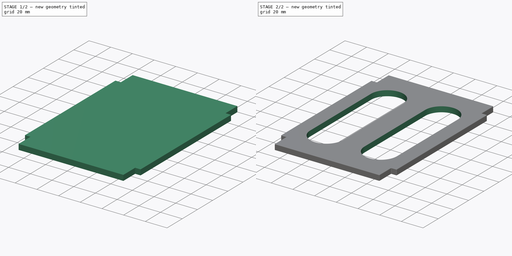
[diagram: build sequence overview — one tinted view per stage of 2, left to right]
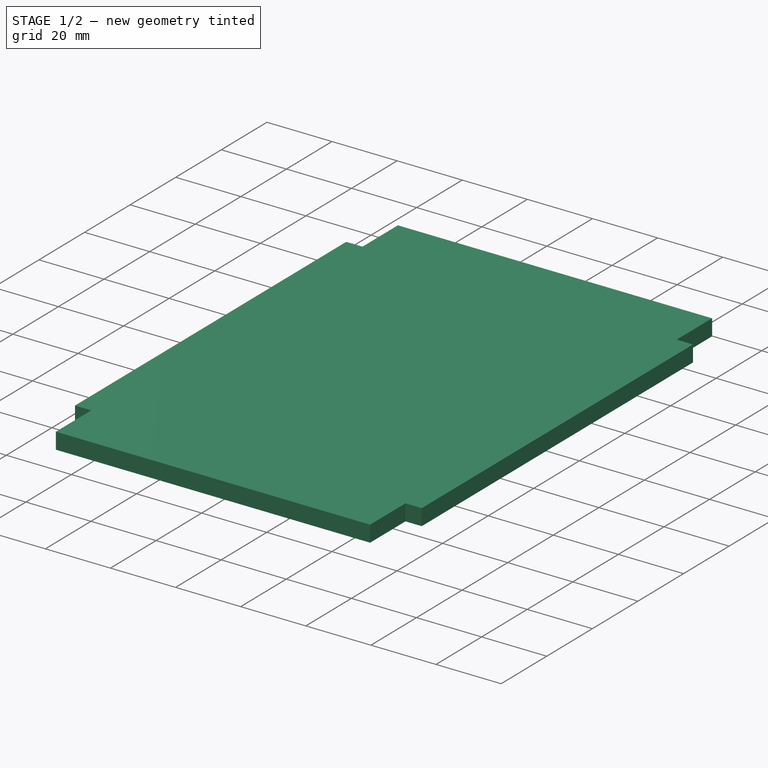
[diagram: stage 1 of 2 — iso view after this stage's code; geometry added in this stage tinted green]
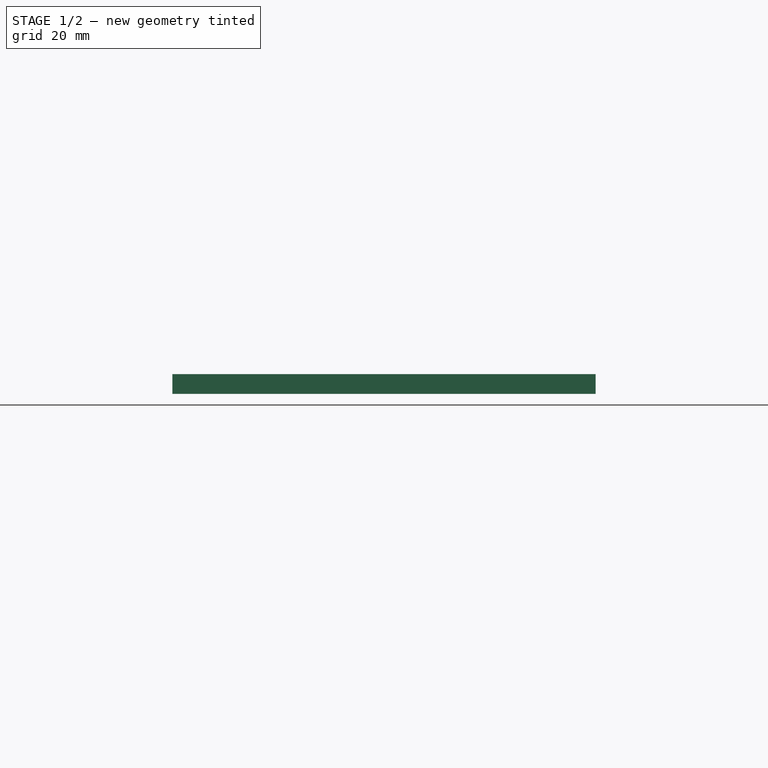
[diagram: stage 1 of 2 — front view after this stage's code; geometry added in this stage tinted green]
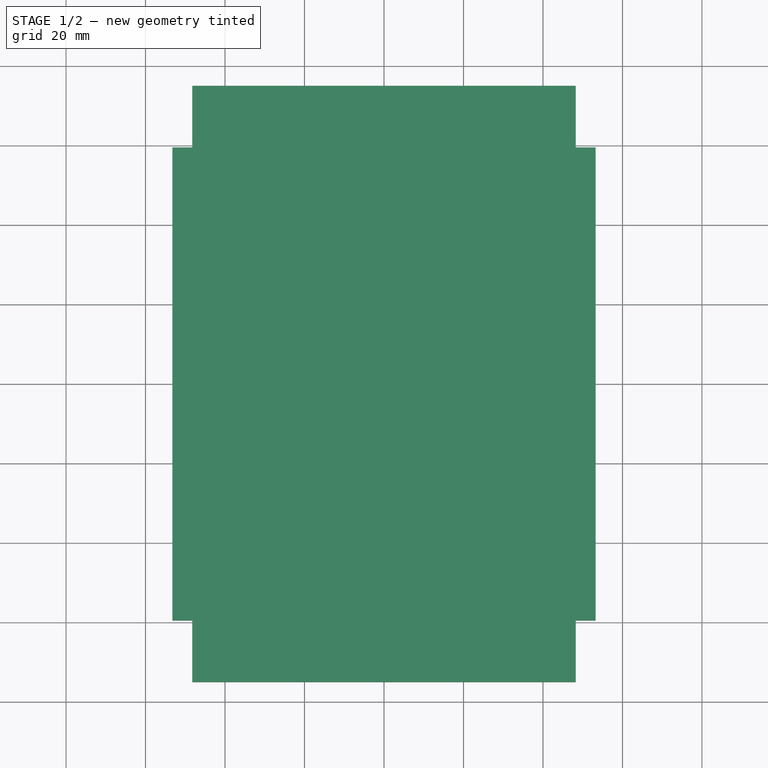
[diagram: stage 1 of 2 — top view after this stage's code; geometry added in this stage tinted green]
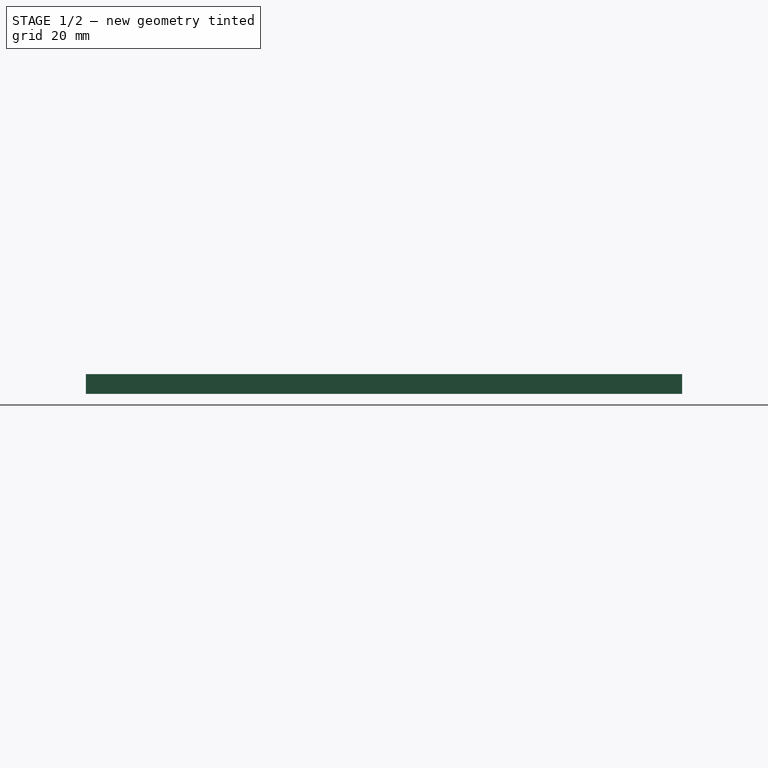
[diagram: stage 1 of 2 — right view after this stage's code; geometry added in this stage tinted green]
FCSTD DOCUMENT  (FreeCAD 0.18R4 (GitTag))
Label: Circuitboard_Mount (Template)
License: CreativeCommons Attribution-NonCommercial
LicenseURL: http://creativecommons.org/licenses/by-nc/4.0/
objects: Sketcher::SketchObject×3, PartDesign::Pocket×2, PartDesign::Pad×1, PartDesign::Fillet×1, PartDesign::Body×1
note: 11 computed .brp shape members not serialized (recipe doc carries the construction recipe); baked Part::Feature solids carry a one-line shape summary decoded from their .brp

FEATURE [Sketcher::SketchObject] Sketch
  MapMode = 5
  Support = -> [XY_Plane]
  sketch-geometry (4):
    g0: LineSegment StartX=-53.25 StartY=75 StartZ=0 EndX=53.25 EndY=75 EndZ=0
    g1: LineSegment StartX=53.25 StartY=75 StartZ=0 EndX=53.25 EndY=-75 EndZ=0
    g2: LineSegment StartX=53.25 StartY=-75 StartZ=0 EndX=-53.25 EndY=-75 EndZ=0
    g3: LineSegment StartX=-53.25 StartY=-75 StartZ=0 EndX=-53.25 EndY=75 EndZ=0
  constraints (10):
    c: Coincident(g0,g1)
    c: Coincident(g1,g2)
    c: Coincident(g2,g3)
    c: Coincident(g3,g0)
    c: Horizontal(g2)
    c: Vertical(g3)
    c: Symmetric(g0,g0,g-2)
    c: Symmetric(g1,g0,g-1)
    c: DistanceX(g0,g0) = 106.5
    c: DistanceY(g1,g1) = 150
FEATURE [PartDesign::Pad] Pad  label="Baseplate"
  Length = 5
  Length2 = 100
  Profile = -> Sketch
  Type = 0
FEATURE [Sketcher::SketchObject] Sketch001
  MapMode = 5
  Placement = pos=(0,0,5) rot=(0,0,1;0rad)
  Support = -> [Pad]
  sketch-geometry (16):
    g0: LineSegment StartX=-53.25 StartY=75 StartZ=0 EndX=-48.25 EndY=75 EndZ=0
    g1: LineSegment StartX=-48.25 StartY=75 StartZ=0 EndX=-48.25 EndY=59.5 EndZ=0
    g2: LineSegment StartX=-48.25 StartY=59.5 StartZ=0 EndX=-53.25 EndY=59.5 EndZ=0
    g3: LineSegment StartX=-53.25 StartY=59.5 StartZ=0 EndX=-53.25 EndY=75 EndZ=0
    g4: LineSegment StartX=53.25 StartY=75 StartZ=0 EndX=48.25 EndY=75 EndZ=0
    g5: LineSegment StartX=48.25 StartY=75 StartZ=0 EndX=48.25 EndY=59.5 EndZ=0
    g6: LineSegment StartX=48.25 StartY=59.5 StartZ=0 EndX=53.25 EndY=59.5 EndZ=0
    g7: LineSegment StartX=53.25 StartY=59.5 StartZ=0 EndX=53.25 EndY=75 EndZ=0
    g8: LineSegment StartX=53.25 StartY=-75 StartZ=0 EndX=48.25 EndY=-75 EndZ=0
    g9: LineSegment StartX=48.25 StartY=-75 StartZ=0 EndX=48.25 EndY=-59.5 EndZ=0
    g10: LineSegment StartX=48.25 StartY=-59.5 StartZ=0 EndX=53.25 EndY=-59.5 EndZ=0
    g11: LineSegment StartX=53.25 StartY=-59.5 StartZ=0 EndX=53.25 EndY=-75 EndZ=0
    g12: LineSegment StartX=-53.25 StartY=-75 StartZ=0 EndX=-48.25 EndY=-75 EndZ=0
    g13: LineSegment StartX=-48.25 StartY=-75 StartZ=0 EndX=-48.25 EndY=-59.5 EndZ=0
    g14: LineSegment StartX=-48.25 StartY=-59.5 StartZ=0 EndX=-53.25 EndY=-59.5 EndZ=0
    g15: LineSegment StartX=-53.25 StartY=-59.5 StartZ=0 EndX=-53.25 EndY=-75 EndZ=0
  constraints (45):
    c: Coincident(g0,g1)
    c: Coincident(g1,g2)
    c: Coincident(g2,g3)
    c: Coincident(g3,g0)
    c: Horizontal(g0)
    c: Horizontal(g2)
    c: Vertical(g1)
    c: Vertical(g3)
    c: Coincident(g4,g5)
    c: Coincident(g5,g6)
    c: Coincident(g6,g7)
    c: Coincident(g7,g4)
    c: Horizontal(g4)
    c: Horizontal(g6)
    c: Vertical(g5)
    c: Vertical(g7)
    c: Coincident(g8,g9)
    c: Coincident(g9,g10)
    c: Coincident(g10,g11)
    c: Coincident(g11,g8)
    c: Horizontal(g8)
    c: Horizontal(g10)
    c: Vertical(g9)
    c: Vertical(g11)
    c: Coincident(g12,g13)
    c: Coincident(g13,g14)
    c: Coincident(g14,g15)
    c: Coincident(g15,g12)
    c: Horizontal(g12)
    c: Horizontal(g14)
    c: Vertical(g13)
    c: Vertical(g15)
    c: Equal(g2,g14)
    c: Equal(g14,g10)
    c: Equal(g10,g6)
    c: Symmetric(g0,g4,g-2)
    c: Symmetric(g10,g6,g-1)
    c: Symmetric(g2,g14,g-1)
    c: Equal(g1,g13)
    c: Equal(g13,g9)
    c: Equal(g9,g5)
    c: DistanceX(g0,g0) = 5
    c: DistanceY(g1,g1) = 15.5
    c: DistanceY(g8,g4) = 150
    c: DistanceX(g0,g4) = 106.5
FEATURE [PartDesign::Pocket] Pocket  label="Baseplate Cutout"
  BaseFeature = -> Pad
  Length = 5
  Length2 = 100
  Profile = -> Sketch001
  Type = 0
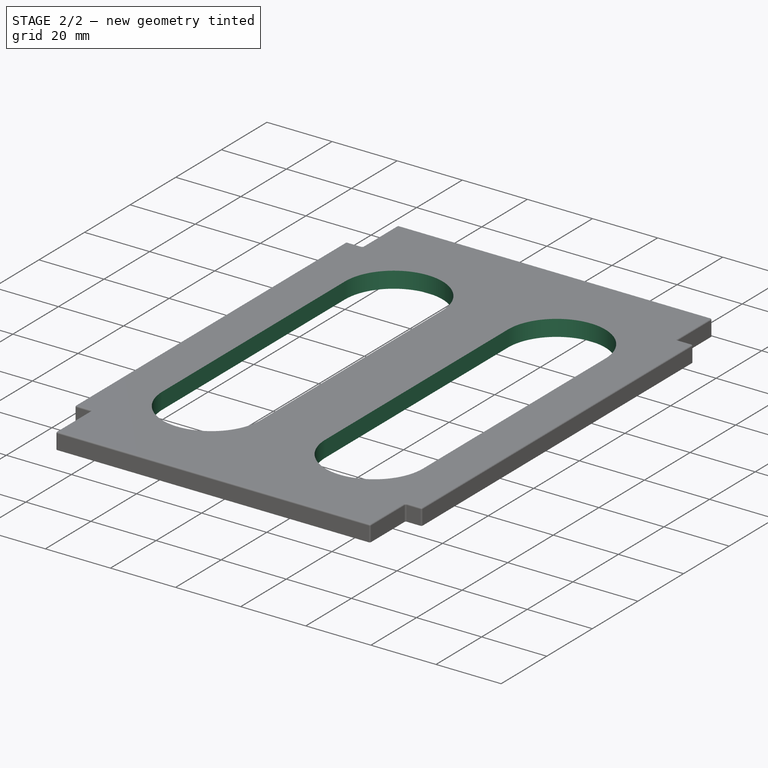
[diagram: stage 2 of 2 — iso view after this stage's code; geometry added in this stage tinted green]
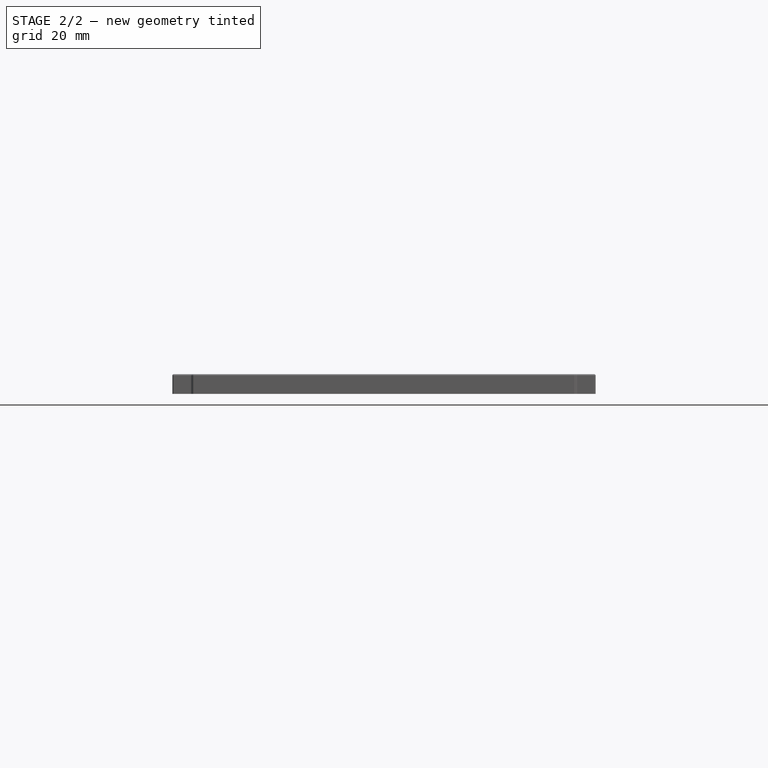
[diagram: stage 2 of 2 — front view after this stage's code; geometry added in this stage tinted green]
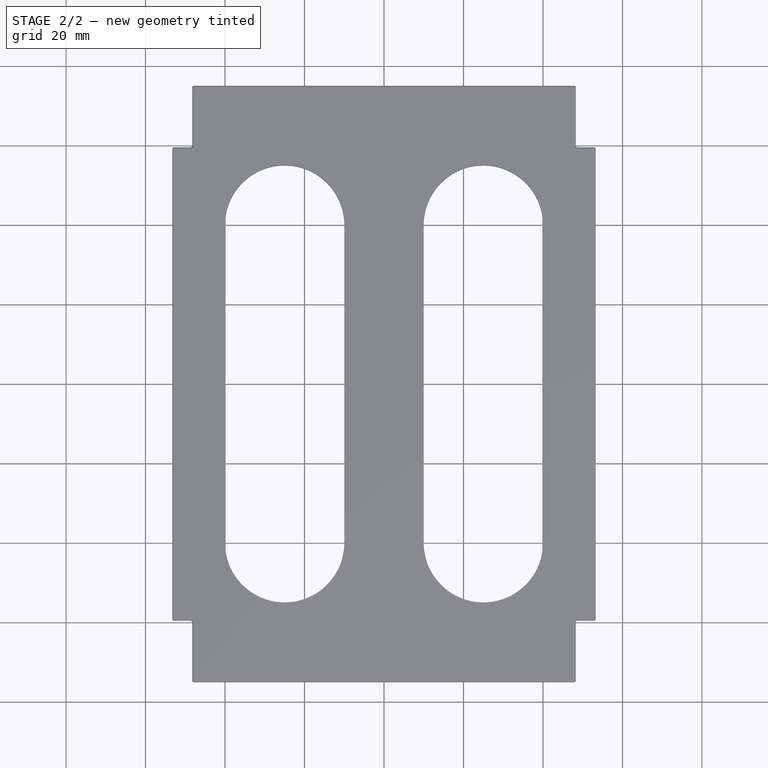
[diagram: stage 2 of 2 — top view after this stage's code; geometry added in this stage tinted green]
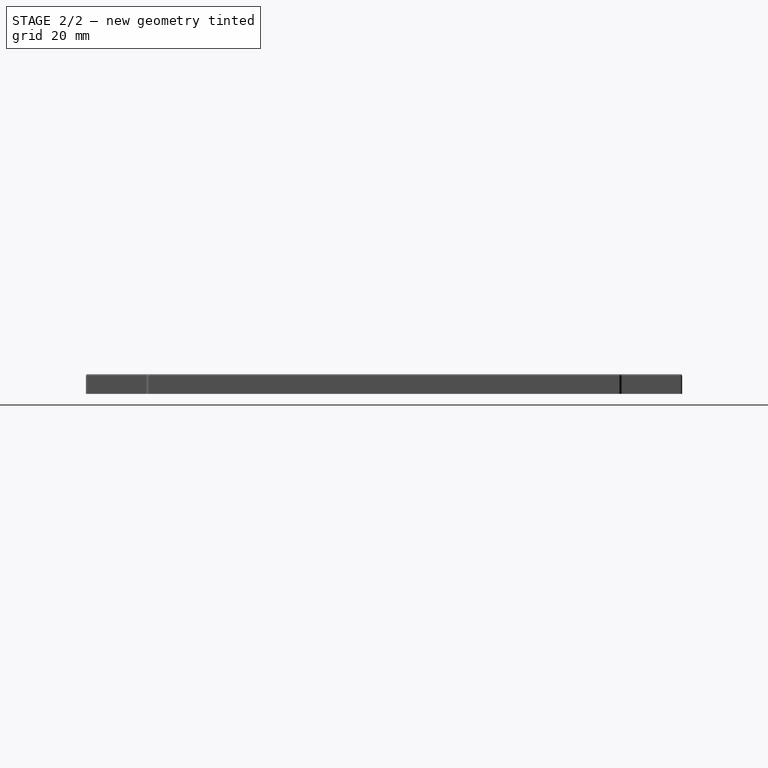
[diagram: stage 2 of 2 — right view after this stage's code; geometry added in this stage tinted green]
FEATURE [PartDesign::Fillet] Fillet  label="Smooth Baseplate Corners"
  Base = -> Pocket [Edge4,Edge28,Edge29,Edge2,Edge16,Edge36,Edge35,Edge34,Edge33,Edge32,Edge31,Edge30,Face4]
  BaseFeature = -> Pocket
  Radius = 0.4
FEATURE [Sketcher::SketchObject] Sketch002
  MapMode = 5
  Placement = pos=(0,0,5) rot=(0,0,1;0rad)
  Support = -> [Fillet]
  sketch-geometry (8):
    g0: ArcOfCircle CenterX=-25 CenterY=-40 CenterZ=0 NormalX=0 NormalY=0 NormalZ=1 AngleXU=0 Radius=15 StartAngle=3.14159 EndAngle=6.28319
    g1: ArcOfCircle CenterX=-25 CenterY=40 CenterZ=0 NormalX=0 NormalY=0 NormalZ=1 AngleXU=0 Radius=15 StartAngle=0 EndAngle=3.14159
    g2: LineSegment StartX=-10 StartY=-40 StartZ=0 EndX=-10 EndY=40 EndZ=0
    g3: LineSegment StartX=-40 StartY=-40 StartZ=0 EndX=-40 EndY=40 EndZ=0
    g4: ArcOfCircle CenterX=25 CenterY=-40 CenterZ=0 NormalX=0 NormalY=0 NormalZ=1 AngleXU=0 Radius=15 StartAngle=3.14159 EndAngle=6.28319
    g5: ArcOfCircle CenterX=25 CenterY=40 CenterZ=0 NormalX=0 NormalY=0 NormalZ=1 AngleXU=0 Radius=15 StartAngle=0 EndAngle=3.14159
    g6: LineSegment StartX=40 StartY=-40 StartZ=0 EndX=40 EndY=40 EndZ=0
    g7: LineSegment StartX=10 StartY=-40 StartZ=0 EndX=10 EndY=40 EndZ=0
  constraints (17):
    c: Tangent(g0,g3) = 1.5708
    c: Tangent(g0,g2) = -1.5708
    c: Tangent(g2,g1) = -1.5708
    c: Tangent(g3,g1) = 1.5708
    c: Vertical(g2)
    c: Tangent(g4,g7) = 1.5708
    c: Tangent(g4,g6) = -1.5708
    c: Tangent(g6,g5) = -1.5708
    c: Tangent(g7,g5) = 1.5708
    c: Vertical(g6)
    c: Equal(g1,g5)
    c: Symmetric(g1,g5,g-2)
    c: Symmetric(g0,g4,g-2)
    c: Radius(g5) = 15
    c: DistanceX(g1,g5) = 50
    c: DistanceY(g4,g5) = 80
    c: Symmetric(g5,g4,g-1)
FEATURE [PartDesign::Pocket] Pocket001  label="Baseplate Weight Reduction"
  BaseFeature = -> Fillet
  Length = 5
  Length2 = 100
  Profile = -> Sketch002
  Type = 0
FEATURE [PartDesign::Body] Body  label="Circuitboard Mount (Template)"
  Group = -> [Sketch,Pad,Sketch001,Pocket,Fillet,Sketch002,Pocket001]
  Origin = -> Origin
  Tip = -> Pocket001
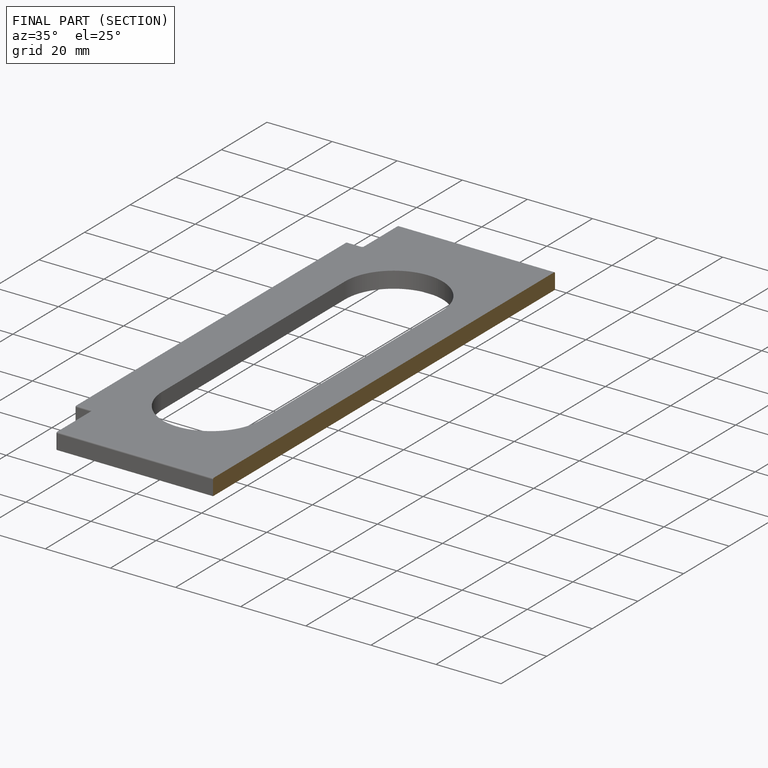
[diagram: finished part — half-section view (interior)]
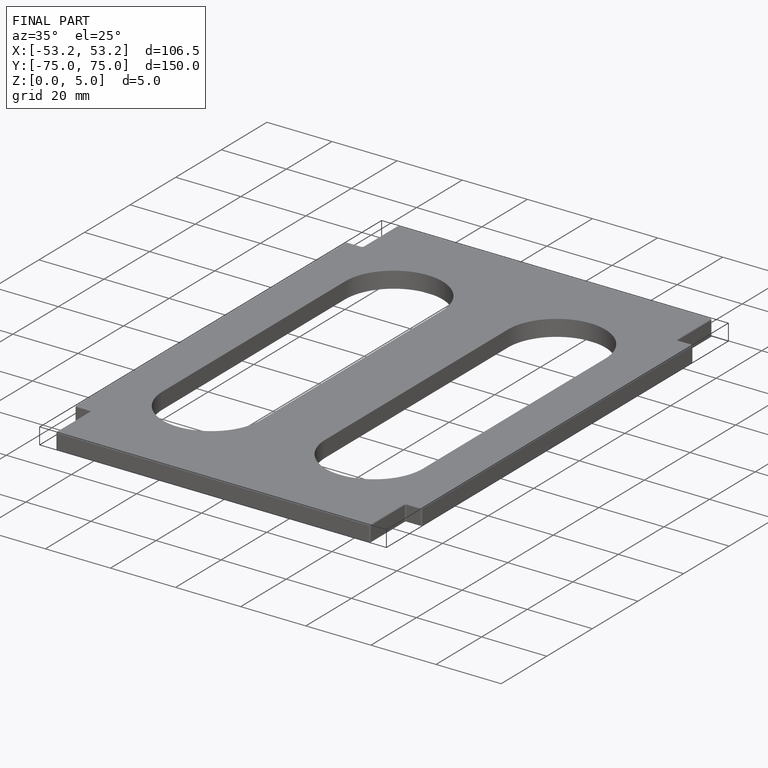
[diagram: finished part — iso view with bounding-box wireframe]
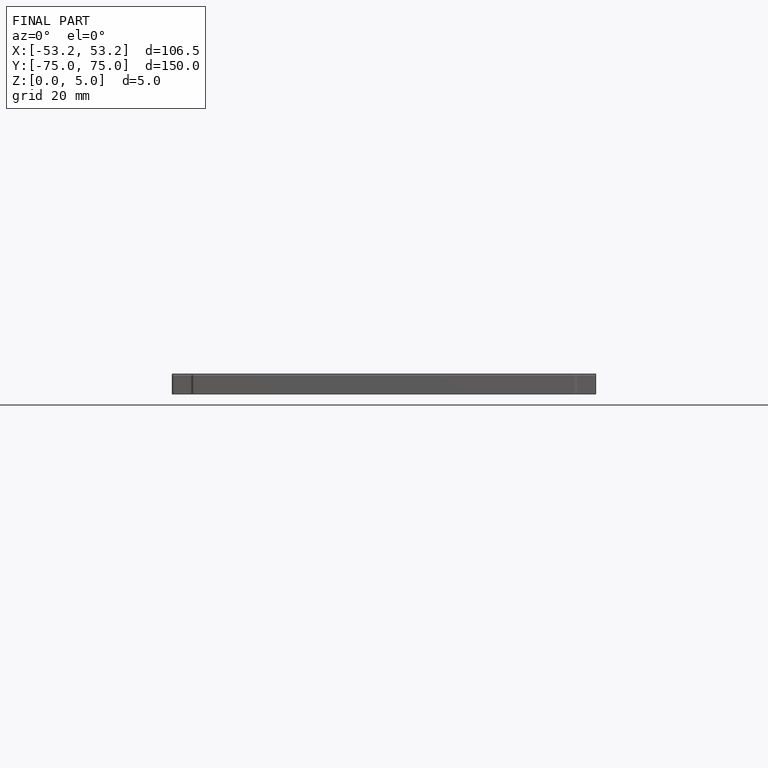
[diagram: finished part — front view with bounding-box wireframe]
